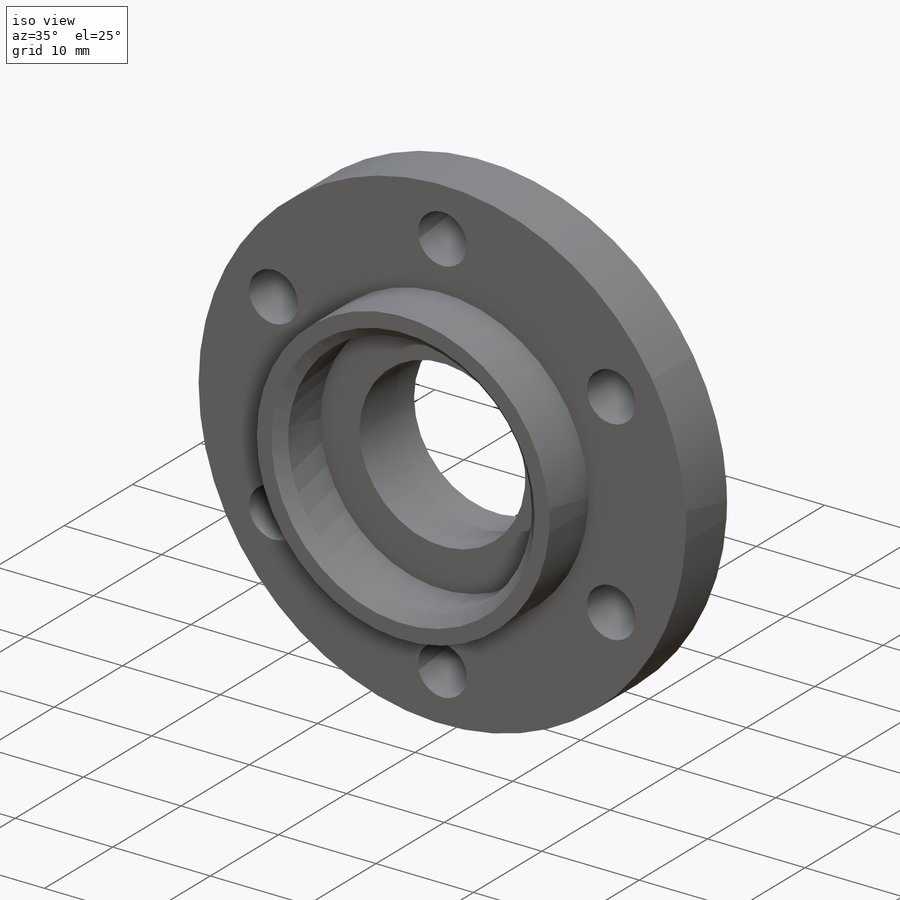
[diagram: iso view]
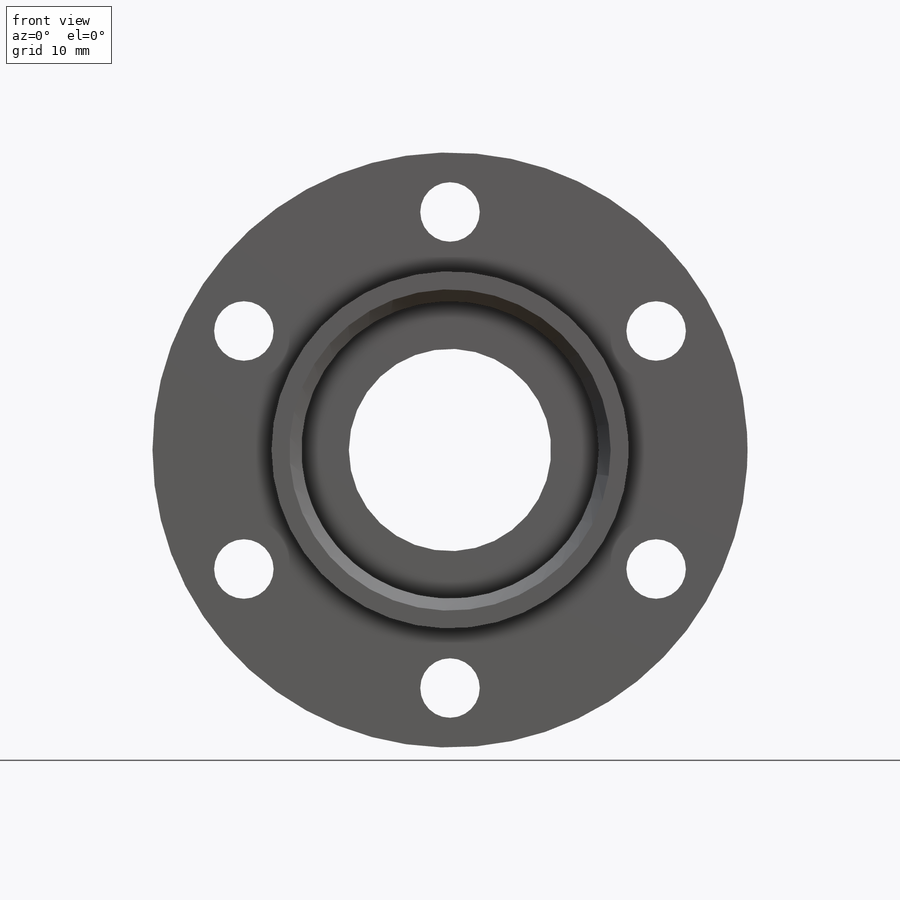
[diagram: front view]
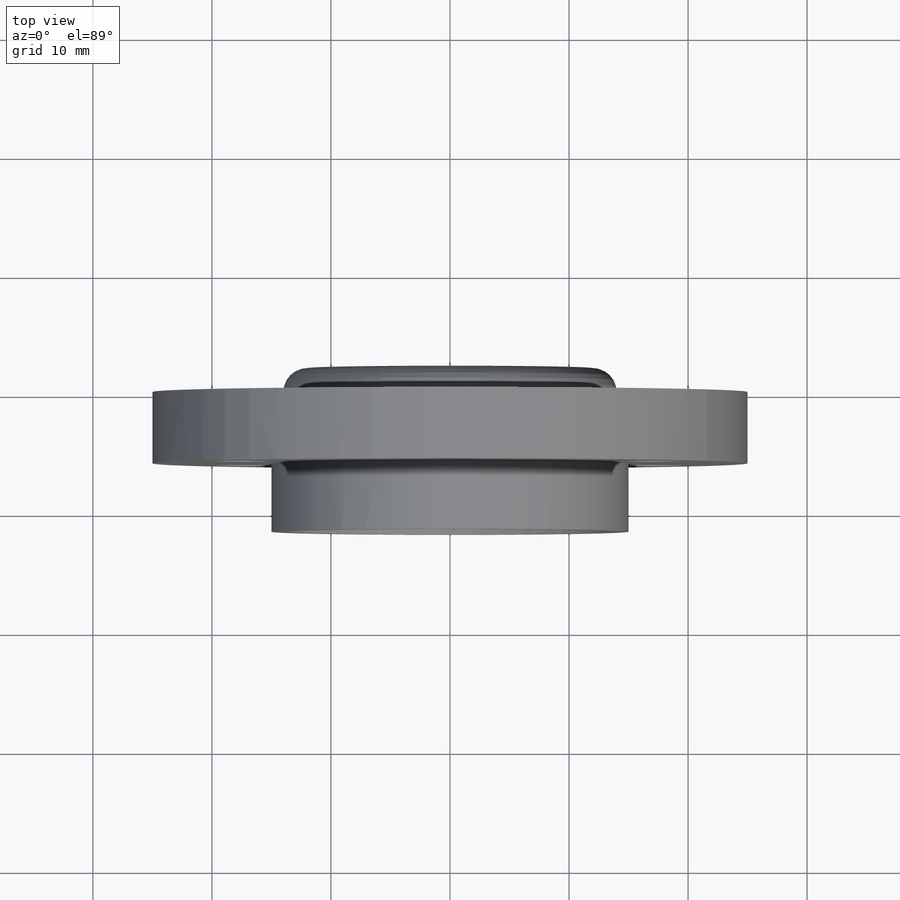
[diagram: top view]
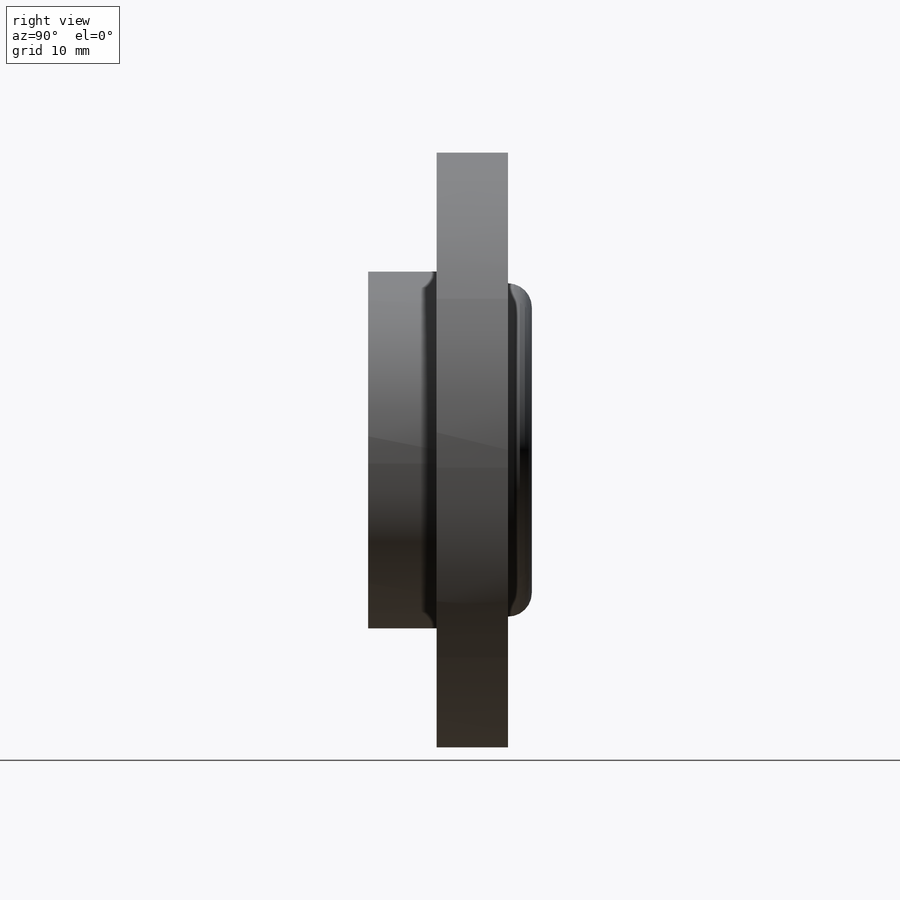
[diagram: right view]
SOLIDWORKS PART (.sldprt)
format: sldprt  version: not decoded by parser v0  size: 244,736 bytes
history: native  units: mm
features: sketch x6, extrude x3, material x1, fillet x1, chamfer x1, hole x1, pattern_circular x1, cut_extrude x1 (+16 scaffold rows collapsed)
feature tree (31):
  scaffold x16  (default folders/planes/origin — collapsed)
  material  "Material <not specified>"
  sketch  "Sketch1"  dims[D1=50.0mm]
  extrude  "Boss-Extrude1"  Depth=6mm
  sketch  "Sketch2"  dims[D1=30.0mm D2=25.0mm]
  extrude  "Boss-Extrude2"  Depth=5.75mm
  sketch  "Sketch3"  dims[D1=28.0mm]
  extrude  "Boss-Extrude3"  Depth=2mm
  fillet  "Fillet1"  Radius=2mm
  chamfer  "Chamfer1"  Distance=1mm Angle=45deg
  hole  "Ø5.0 (5) Diameter Hole1"  Diameter=5mm Depth=11.75mm
  sketch  "Sketch9"  dims[D1=0.0mm D2=20.0mm]
  sketch  "Sketch8"  dims[hole-wizard template sketch: 60 standard entries collapsed; hole parameters kept: c18.Thru Hole Depth=11.75mm]
  pattern_circular  "CirPattern1"  Count=6 Angle=360deg
  sketch  "Sketch10"  dims[D1=17.0mm]
  cut_extrude  "Cut-Extrude1"  [1 undecoded]
decode coverage: 13 of 14 modeling features carry decoded parameters
note: ~ marks probable driven/reference dimensions
note: 1 parameter value undecoded
note: suppression state not decoded; provenance and decode notes live in map.json
